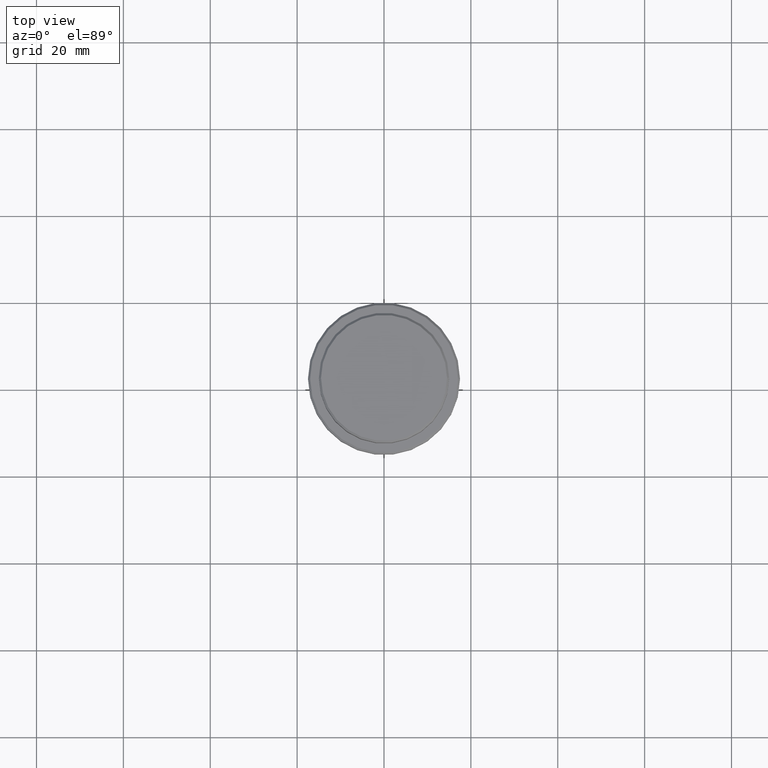
[diagram: clean part render]
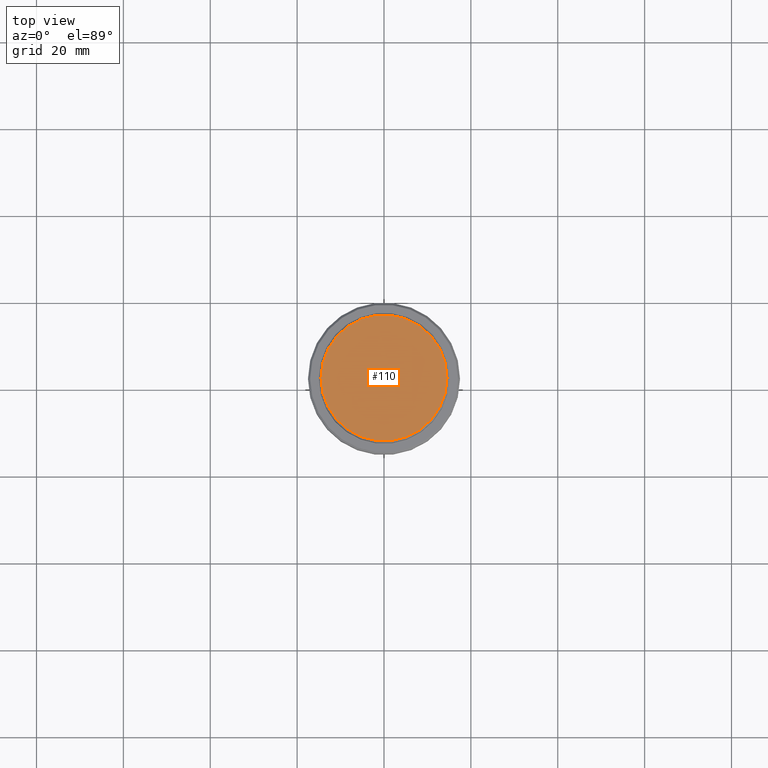
[diagram: same view with one face highlighted and labeled with its STEP entity id]
A machine part, top view. The second image highlights one B-rep face of the part: STEP entity #110.
In plain terms, the highlighted planar face has unit normal (0, -0, 1).
Its self-contained STEP definition (entity closure, byte-faithful):
#6 = VERTEX_POINT ( 'NONE', #306 ) ;
#52 = VERTEX_POINT ( 'NONE', #1079 ) ;
#110 = ADVANCED_FACE ( 'NONE', ( #1343 ), #812, .T. ) ;
#163 = CARTESIAN_POINT ( 'NONE',  ( 0.000000000000000000, 0.000000000000000000, 0.000000000000000000 ) ) ;
#306 = CARTESIAN_POINT ( 'NONE',  ( -14.49999999999995559, 0.000000000000000000, 0.000000000000000000 ) ) ;
#399 = DIRECTION ( 'NONE',  ( 1.000000000000000000, 0.000000000000000000, 0.000000000000000000 ) ) ;
#423 = DIRECTION ( 'NONE',  ( -0.000000000000000000, -0.000000000000000000, 1.000000000000000000 ) ) ;
#517 = EDGE_LOOP ( 'NONE', ( #941, #785 ) ) ;
#572 = AXIS2_PLACEMENT_3D ( 'NONE', #163, #423, #399 ) ;
#605 = EDGE_CURVE ( 'NONE', #6, #52, #931, .T. ) ;
#725 = CARTESIAN_POINT ( 'NONE',  ( 0.000000000000000000, 0.000000000000000000, 0.000000000000000000 ) ) ;
#737 = CIRCLE ( 'NONE', #848, 14.49999999999995559 ) ;
#785 = ORIENTED_EDGE ( 'NONE', *, *, #1087, .T. ) ;
#787 = DIRECTION ( 'NONE',  ( 0.000000000000000000, -0.000000000000000000, 1.000000000000000000 ) ) ;
#788 = CARTESIAN_POINT ( 'NONE',  ( 0.000000000000000000, 0.000000000000000000, 0.000000000000000000 ) ) ;
#812 = PLANE ( 'NONE',  #905 ) ;
#848 = AXIS2_PLACEMENT_3D ( 'NONE', #788, #901, #1331 ) ;
#901 = DIRECTION ( 'NONE',  ( -0.000000000000000000, -0.000000000000000000, 1.000000000000000000 ) ) ;
#905 = AXIS2_PLACEMENT_3D ( 'NONE', #725, #787, #1241 ) ;
#931 = CIRCLE ( 'NONE', #572, 14.49999999999995559 ) ;
#941 = ORIENTED_EDGE ( 'NONE', *, *, #605, .T. ) ;
#1079 = CARTESIAN_POINT ( 'NONE',  ( 14.49999999999995559, 1.806354028742343041E-15, 0.000000000000000000 ) ) ;
#1087 = EDGE_CURVE ( 'NONE', #52, #6, #737, .T. ) ;
#1241 = DIRECTION ( 'NONE',  ( 1.000000000000000000, 0.000000000000000000, 0.000000000000000000 ) ) ;
#1331 = DIRECTION ( 'NONE',  ( 1.000000000000000000, 0.000000000000000000, 0.000000000000000000 ) ) ;
#1343 = FACE_OUTER_BOUND ( 'NONE', #517, .T. ) ;